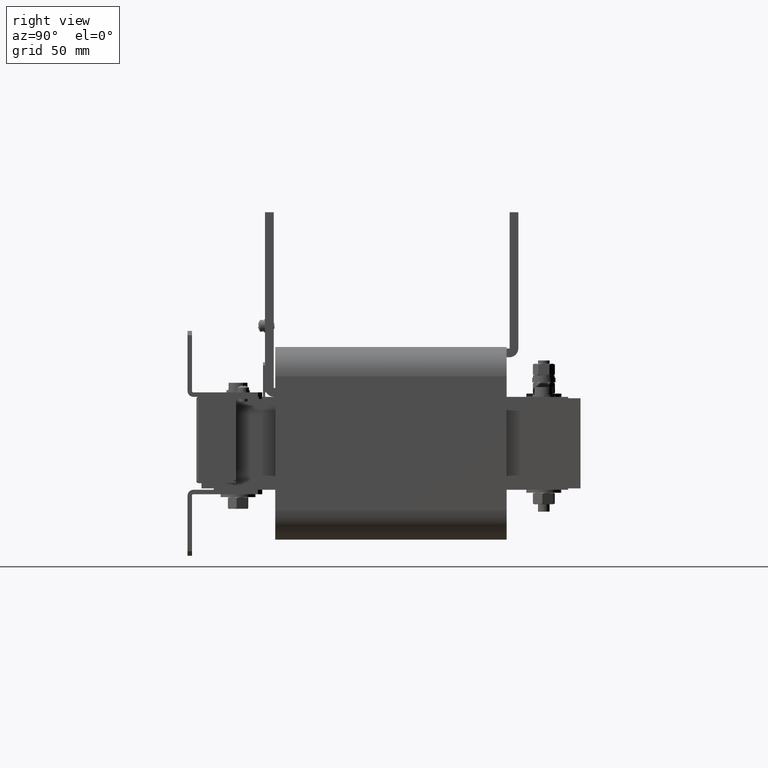
[diagram: clean part render]
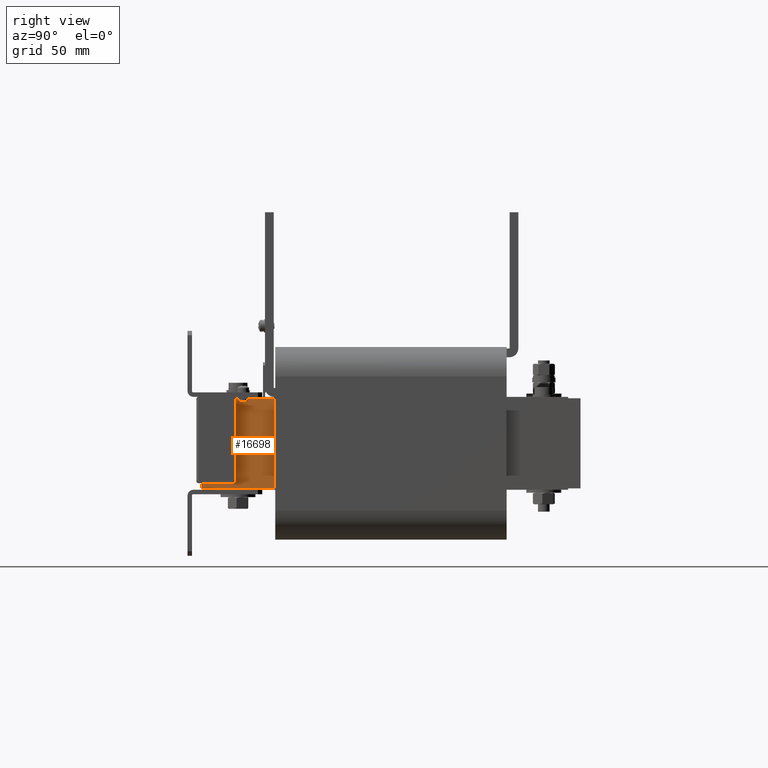
[diagram: same view with one face highlighted and labeled with its STEP entity id]
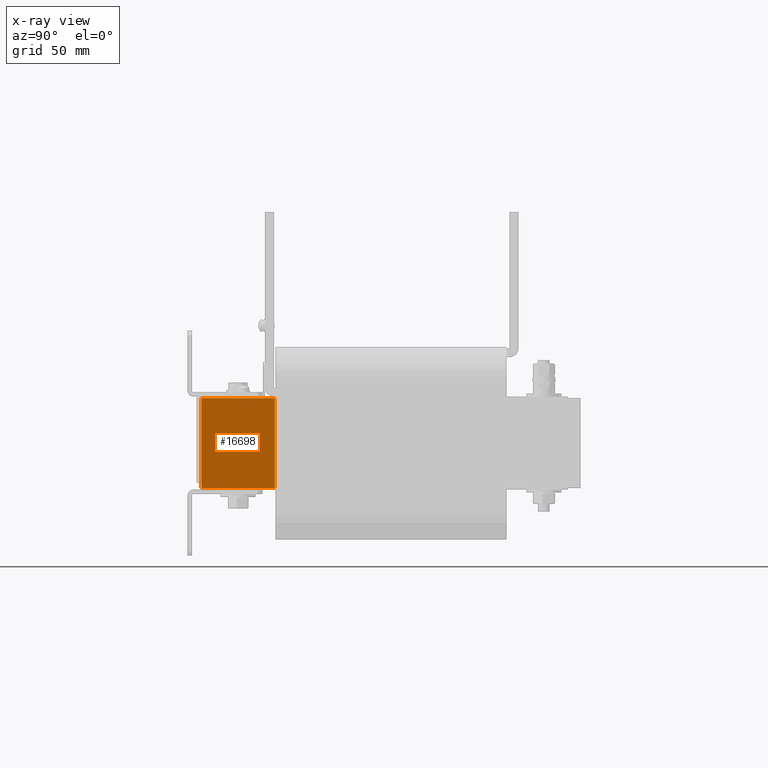
[diagram: x-ray of the same camera — body ghosted, the highlighted face saturated]
A machine part, right view. The second image highlights one B-rep face of the part: STEP entity #16698.
The next image is the same camera in x-ray: the body ghosted, the highlighted face saturated — about 0% of this face is hidden behind the body in this view.
In plain terms, the highlighted planar face has unit normal (-1, 0, 0).
Its self-contained STEP definition (entity closure, byte-faithful):
#763 = ORIENTED_EDGE ( 'NONE', *, *, #6254, .F. ) ;
#896 = DIRECTION ( 'NONE',  ( -1.000000000000000000, 0.0000000000000000000, 0.0000000000000000000 ) ) ;
#1617 = VECTOR ( 'NONE', #14146, 1000.000000000000000 ) ;
#2409 = VERTEX_POINT ( 'NONE', #18971 ) ;
#3434 = DIRECTION ( 'NONE',  ( -0.0000000000000000000, -0.0000000000000000000, -1.000000000000000000 ) ) ;
#4180 = DIRECTION ( 'NONE',  ( 0.0000000000000000000, 1.000000000000000000, 0.0000000000000000000 ) ) ;
#4582 = VERTEX_POINT ( 'NONE', #18893 ) ;
#4795 = FACE_OUTER_BOUND ( 'NONE', #13242, .T. ) ;
#5055 = AXIS2_PLACEMENT_3D ( 'NONE', #11401, #896, #15684 ) ;
#6254 = EDGE_CURVE ( 'NONE', #19914, #19102, #26344, .T. ) ;
#9011 = EDGE_CURVE ( 'NONE', #4582, #19102, #15098, .T. ) ;
#10186 = CARTESIAN_POINT ( 'NONE',  ( 124.9999999999999600, -25.00000000000000400, 30.75000000000000000 ) ) ;
#11401 = CARTESIAN_POINT ( 'NONE',  ( 124.9999999999999600, -25.00000000000000400, 30.75000000000000000 ) ) ;
#11898 = ORIENTED_EDGE ( 'NONE', *, *, #24235, .T. ) ;
#12493 = EDGE_CURVE ( 'NONE', #2409, #19914, #27280, .T. ) ;
#13242 = EDGE_LOOP ( 'NONE', ( #22326, #763, #13246, #11898 ) ) ;
#13246 = ORIENTED_EDGE ( 'NONE', *, *, #12493, .F. ) ;
#13528 = PLANE ( 'NONE',  #5055 ) ;
#13984 = VECTOR ( 'NONE', #16987, 1000.000000000000000 ) ;
#14108 = CARTESIAN_POINT ( 'NONE',  ( 124.9999999999999600, 24.99999999999999600, 30.75000000000000000 ) ) ;
#14146 = DIRECTION ( 'NONE',  ( -0.0000000000000000000, -0.0000000000000000000, -1.000000000000000000 ) ) ;
#14824 = CARTESIAN_POINT ( 'NONE',  ( 124.9999999999999600, -25.00000000000000400, 30.75000000000000000 ) ) ;
#15034 = CARTESIAN_POINT ( 'NONE',  ( 124.9999999999999600, 24.99999999999999600, -30.75000000000000000 ) ) ;
#15098 = LINE ( 'NONE', #21021, #15375 ) ;
#15375 = VECTOR ( 'NONE', #4180, 1000.000000000000000 ) ;
#15615 = LINE ( 'NONE', #10186, #1617 ) ;
#15684 = DIRECTION ( 'NONE',  ( 0.0000000000000000000, 0.0000000000000000000, 1.000000000000000000 ) ) ;
#16698 = ADVANCED_FACE ( 'NONE', ( #4795 ), #13528, .F. ) ;
#16987 = DIRECTION ( 'NONE',  ( 0.0000000000000000000, 1.000000000000000000, 0.0000000000000000000 ) ) ;
#17734 = VECTOR ( 'NONE', #3434, 1000.000000000000000 ) ;
#18893 = CARTESIAN_POINT ( 'NONE',  ( 124.9999999999999600, -25.00000000000000400, -30.75000000000000000 ) ) ;
#18971 = CARTESIAN_POINT ( 'NONE',  ( 124.9999999999999600, -25.00000000000000400, 30.75000000000000000 ) ) ;
#19102 = VERTEX_POINT ( 'NONE', #15034 ) ;
#19914 = VERTEX_POINT ( 'NONE', #22699 ) ;
#21021 = CARTESIAN_POINT ( 'NONE',  ( 124.9999999999999600, -25.00000000000000400, -30.75000000000000000 ) ) ;
#22326 = ORIENTED_EDGE ( 'NONE', *, *, #9011, .T. ) ;
#22699 = CARTESIAN_POINT ( 'NONE',  ( 124.9999999999999600, 24.99999999999999600, 30.75000000000000000 ) ) ;
#24235 = EDGE_CURVE ( 'NONE', #2409, #4582, #15615, .T. ) ;
#26344 = LINE ( 'NONE', #14108, #17734 ) ;
#27280 = LINE ( 'NONE', #14824, #13984 ) ;